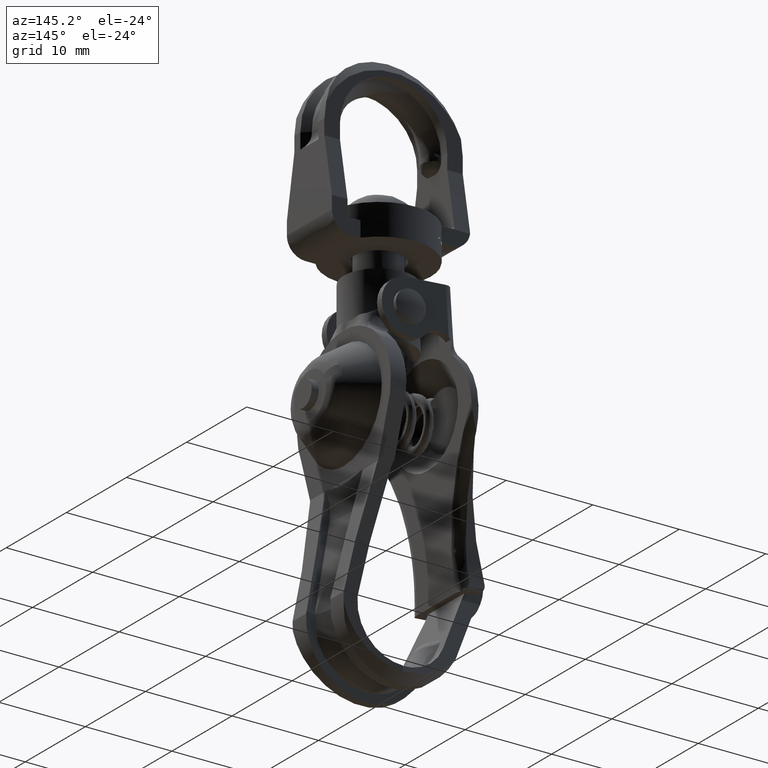
[diagram: clean part render]
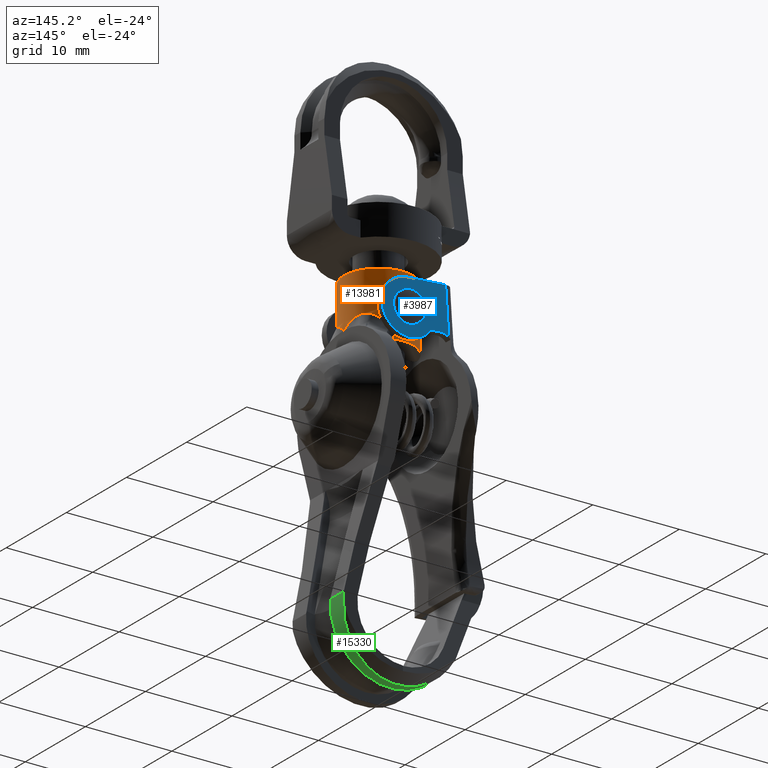
[diagram: same view with three faces highlighted in distinct colors, each labeled with its STEP entity id]
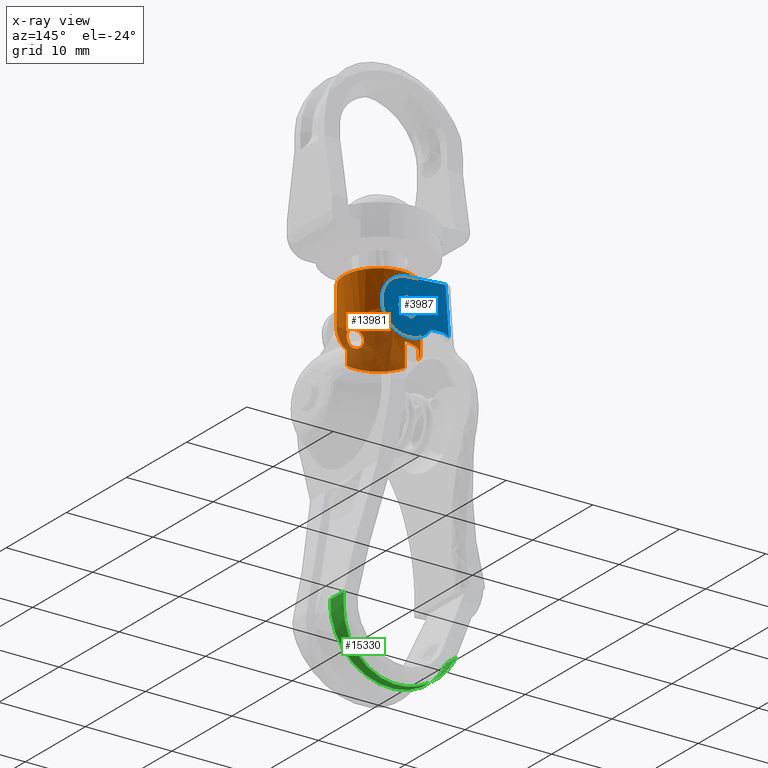
[diagram: x-ray of the same camera — body ghosted, the three highlighted faces saturated]
A machine part, auxiliary view with three faces highlighted in distinct colors.
The next image is the same camera in x-ray (body ghosted, the three faces saturated) — at least one of them is partly hidden behind the body in this view.
Their STEP definitions:

[orange] entity #13981 — the highlighted face is a freeform B-spline surface patch.
#9610=CARTESIAN_POINT('',(-0.999962068885470,3.872993182236981,-0.008726536741870));
#9611=VERTEX_POINT('',#9610);
#9617=CARTESIAN_POINT('',(-0.000423108608414,3.999999977622388,0.999999910489549));
#9618=VERTEX_POINT('',#9617);
#9619=CARTESIAN_POINT('',(-0.999962068885470,3.872993182236981,-0.008726536741870));
#9620=CARTESIAN_POINT('',(-0.999985571059120,3.872987100778583,-0.006028836558230));
#9621=CARTESIAN_POINT('',(-0.999998097247055,3.872983837496015,-0.003330369445373));
#9622=CARTESIAN_POINT('',(-1.000041144697042,3.872972722694584,0.064875800232487));
#9623=CARTESIAN_POINT('',(-0.993485459441529,3.874682101992454,0.131440066759316));
#9624=CARTESIAN_POINT('',(-0.967853765220321,3.881163979886868,0.259901786104458));
#9625=CARTESIAN_POINT('',(-0.948893006351335,3.885906759591078,0.322366082393718));
#9626=CARTESIAN_POINT('',(-0.911136194793428,3.894868181976388,0.413412979576691));
#9627=CARTESIAN_POINT('',(-0.896955468350869,3.898168982262903,0.443328440044986));
#9628=CARTESIAN_POINT('',(-0.866077698382924,3.905145316994600,0.500977682457995));
#9629=CARTESIAN_POINT('',(-0.832554788448978,3.912527710593756,0.556789168972300));
#9630=CARTESIAN_POINT('',(-0.793828377586257,3.920494977101915,0.609015543086898));
#9631=CARTESIAN_POINT('',(-0.752463781605615,3.928643864734286,0.659440431088689));
#9632=CARTESIAN_POINT('',(-0.730334860604453,3.932831615594828,0.683874006429497));
#9633=CARTESIAN_POINT('',(-0.660865323108155,3.945310016419308,0.753357608210982));
#9634=CARTESIAN_POINT('',(-0.610671279674314,3.953486819483885,0.794550944384370));
#9635=CARTESIAN_POINT('',(-0.529618731058294,3.964876840536812,0.848859030388729));
#9636=CARTESIAN_POINT('',(-0.501633937159359,3.968528164172080,0.865705294391371));
#9637=CARTESIAN_POINT('',(-0.443651332049206,3.975427762179558,0.896803077168124));
#9638=CARTESIAN_POINT('',(-0.413857913153447,3.978648081008894,0.910927696711712));
#9639=CARTESIAN_POINT('',(-0.323335930819020,3.987371261247600,0.948538053799800));
#9640=CARTESIAN_POINT('',(-0.260991754024953,3.991996867433378,0.967572031982003));
#9641=CARTESIAN_POINT('',(-0.164411719979087,3.996749642853587,0.986938128516287));
#9642=CARTESIAN_POINT('',(-0.131508906413852,3.997972314730255,0.991863177954335));
#9643=CARTESIAN_POINT('',(-0.065886776857377,3.999591998498235,0.998371718791747));
#9644=CARTESIAN_POINT('',(-0.033128945072798,3.999996518092131,0.999986072367357));
#9645=CARTESIAN_POINT('',(-0.000423108608416,3.999999977622388,0.999999910489549));
#9646=B_SPLINE_CURVE_WITH_KNOTS('',3,(#9619,#9620,#9621,#9622,#9623,#9624,#9625,#9626,#9627,#9628,#9629,#9630,#9631,#9632,#9633,#9634,#9635,#9636,#9637,#9638,#9639,#9640,#9641,#9642,#9643,#9644,#9645),.UNSPECIFIED.,.F.,.U.,(4,2,2,2,2,1,2,2,2,2,2,2,2,4),(0.248712334669810,0.250000000000000,0.281250000000000,0.312500000000000,0.328125000000000,0.343750000000000,0.359375000000000,0.375000000000000,0.406250000000000,0.421875000000000,0.437500000000000,0.468750000000000,0.484375000000000,0.500000000000000),.UNSPECIFIED.);
#9647=EDGE_CURVE('',#9611,#9618,#9646,.T.);
#9649=CARTESIAN_POINT('',(0.992266426163852,3.874971964004921,0.124128028633417));
#9650=VERTEX_POINT('',#9649);
#9651=CARTESIAN_POINT('',(-0.000423108608416,3.999999977622388,0.999999910489549));
#9652=CARTESIAN_POINT('',(0.064988564320348,4.000006896682901,1.000027586733933));
#9653=CARTESIAN_POINT('',(0.130193707947354,3.998410124193091,0.993700522976112));
#9654=CARTESIAN_POINT('',(0.260175884822058,3.992059923372386,0.967832444129219));
#9655=CARTESIAN_POINT('',(0.322736886998014,3.987418109038126,0.948732473390607));
#9656=CARTESIAN_POINT('',(0.413094960063013,3.978726947479450,0.911271449703284));
#9657=CARTESIAN_POINT('',(0.442631686376445,3.975541075493314,0.897304097255540));
#9658=CARTESIAN_POINT('',(0.500522733673286,3.968668119885462,0.866345454084141));
#9659=CARTESIAN_POINT('',(0.528859721942345,3.964979007012015,0.849337167323413));
#9660=CARTESIAN_POINT('',(0.610281894157902,3.953550370972733,0.794871641727056));
#9661=CARTESIAN_POINT('',(0.660460472614129,3.945375675737620,0.753686431681132));
#9662=CARTESIAN_POINT('',(0.729667114071059,3.932955023552921,0.684579229118038));
#9663=CARTESIAN_POINT('',(0.751827928753014,3.928766228772710,0.660172675813406));
#9664=CARTESIAN_POINT('',(0.793423655765769,3.920577536188932,0.609550735226331));
#9665=CARTESIAN_POINT('',(0.812843179784708,3.916583656016640,0.583388140739750));
#9666=CARTESIAN_POINT('',(0.867078510249854,3.905066085876091,0.502392165321158));
#9667=CARTESIAN_POINT('',(0.897912216250072,3.898003385103924,0.445076022799854));
#9668=CARTESIAN_POINT('',(0.935879926462068,3.888997036234221,0.353855220091454));
#9669=CARTESIAN_POINT('',(0.947046038411195,3.886283608887539,0.322761044705540));
#9670=CARTESIAN_POINT('',(0.966121612071139,3.881585438743731,0.260153649866406));
#9671=CARTESIAN_POINT('',(0.980049638675573,3.878091745303511,0.204830987506519));
#9672=CARTESIAN_POINT('',(0.989224709816871,3.875751048526229,0.148449416878946));
#9673=CARTESIAN_POINT('',(0.992266426163852,3.874971964004921,0.124128028633417));
#9674=B_SPLINE_CURVE_WITH_KNOTS('',3,(#9651,#9652,#9653,#9654,#9655,#9656,#9657,#9658,#9659,#9660,#9661,#9662,#9663,#9664,#9665,#9666,#9667,#9668,#9669,#9670,#9671,#9672,#9673),.UNSPECIFIED.,.F.,.U.,(4,2,2,2,2,2,2,2,2,2,1,4),(0.500000000000000,0.531250000000000,0.562500000000000,0.578125000000000,0.593750000000000,0.625000000000000,0.640625000000000,0.656250000000000,0.687500000000000,0.703125000000000,0.718750000000000,0.730435272819264),.UNSPECIFIED.);
#9675=EDGE_CURVE('',#9618,#9650,#9674,.T.);
#9741=CARTESIAN_POINT('',(8.809143E-017,3.999999999999999,-1.0));
#9742=VERTEX_POINT('',#9741);
#9743=CARTESIAN_POINT('',(0.992266426163852,3.874971964004921,0.124128028633417));
#9744=CARTESIAN_POINT('',(0.993292234507383,3.874709293162553,0.115928030145895));
#9745=CARTESIAN_POINT('',(0.994217364917166,3.874471906635534,0.107705574768065));
#9746=CARTESIAN_POINT('',(0.998310056068526,3.873420764659158,0.066760724663216));
#9747=CARTESIAN_POINT('',(0.999982526562811,3.872987857828901,0.033510364476915));
#9748=CARTESIAN_POINT('',(1.000034532562311,3.872974429939548,-0.065444064025209));
#9749=CARTESIAN_POINT('',(0.993604242000163,3.874651425242283,-0.130531992135936));
#9750=CARTESIAN_POINT('',(0.968097296161260,3.881103023886127,-0.258989605692877));
#9751=CARTESIAN_POINT('',(0.948709410054154,3.885950550751801,-0.322822917681880));
#9752=CARTESIAN_POINT('',(0.898670724500772,3.897826593954480,-0.443458126356029));
#9753=CARTESIAN_POINT('',(0.867995005616363,3.904865085775337,-0.500884628601724));
#9754=CARTESIAN_POINT('',(0.813358404048226,3.916477342400271,-0.582686272191362));
#9755=CARTESIAN_POINT('',(0.793701960889775,3.920520600823231,-0.609180299583945));
#9756=CARTESIAN_POINT('',(0.752326589502181,3.928670167744759,-0.659596954851579));
#9757=CARTESIAN_POINT('',(0.708698325006938,3.936924344168036,-0.707742679831820));
#9758=CARTESIAN_POINT('',(0.660611899881191,3.945154288025250,-0.751435501780867));
#9759=CARTESIAN_POINT('',(0.610252225317114,3.953257221593880,-0.792878059411919));
#9760=CARTESIAN_POINT('',(0.583783531848933,3.957265942911589,-0.812571334770505));
#9761=CARTESIAN_POINT('',(0.502047898719905,3.968749894782328,-0.867323153147580));
#9762=CARTESIAN_POINT('',(0.444701378261918,3.975663031505722,-0.898048558898313));
#9763=CARTESIAN_POINT('',(0.354425892015447,3.984381539341634,-0.935652135978443));
#9764=CARTESIAN_POINT('',(0.323619770644311,3.987012786965464,-0.946762091574962));
#9765=CARTESIAN_POINT('',(0.260520357495472,3.991632480916601,-0.966031757928126));
#9766=CARTESIAN_POINT('',(0.228398219241901,3.993604257835043,-0.974122179282395));
#9767=CARTESIAN_POINT('',(0.131734351459295,3.998350774963326,-0.993461185722225));
#9768=CARTESIAN_POINT('',(0.066346928809154,3.999999999999999,-1.0));
#9769=CARTESIAN_POINT('',(-6.776264E-018,3.999999999999999,-1.0));
#9770=B_SPLINE_CURVE_WITH_KNOTS('',3,(#9743,#9744,#9745,#9746,#9747,#9748,#9749,#9750,#9751,#9752,#9753,#9754,#9755,#9756,#9757,#9758,#9759,#9760,#9761,#9762,#9763,#9764,#9765,#9766,#9767,#9768,#9769),.UNSPECIFIED.,.F.,.U.,(4,2,2,2,2,2,2,1,2,2,2,2,2,4),(0.730435272819266,0.734375000000000,0.750000000000000,0.781250000000000,0.812499999999999,0.843749999999999,0.859375000000000,0.875000000000000,0.890625000000000,0.906250000000000,0.937500000000000,0.953125000000000,0.968750000000000,1.0),.UNSPECIFIED.);
#9771=EDGE_CURVE('',#9650,#9742,#9770,.T.);
#9773=CARTESIAN_POINT('',(8.809143E-017,3.999999999999999,-1.0));
#9774=CARTESIAN_POINT('',(-0.066346928809154,3.999999999999999,-1.0));
#9775=CARTESIAN_POINT('',(-0.131533821311696,3.998351561859408,-0.993463012856398));
#9776=CARTESIAN_POINT('',(-0.227656949703119,3.993645127304752,-0.974289376554787));
#9777=CARTESIAN_POINT('',(-0.259419795687325,3.991703598008318,-0.966324974622999));
#9778=CARTESIAN_POINT('',(-0.322379328674554,3.987112716388935,-0.947182218698143));
#9779=CARTESIAN_POINT('',(-0.353600397821250,3.984456053212323,-0.935969876103920));
#9780=CARTESIAN_POINT('',(-0.444336348558749,3.975708532403752,-0.898251975006250));
#9781=CARTESIAN_POINT('',(-0.501673011903517,3.968793947848459,-0.867515938867273));
#9782=CARTESIAN_POINT('',(-0.583050474926007,3.957373175040015,-0.813091060370159));
#9783=CARTESIAN_POINT('',(-0.609531518691156,3.953369323160584,-0.793438895663227));
#9784=CARTESIAN_POINT('',(-0.660171851389680,3.945228865885709,-0.751829156166446));
#9785=CARTESIAN_POINT('',(-0.684290986730028,3.941102616417247,-0.729931658751913));
#9786=CARTESIAN_POINT('',(-0.753159205963201,3.928730986091579,-0.661036106688564));
#9787=CARTESIAN_POINT('',(-0.794454417489000,3.920489560295310,-0.610867934813431));
#9788=CARTESIAN_POINT('',(-0.849280442146252,3.908845326186615,-0.528963225943563));
#9789=CARTESIAN_POINT('',(-0.866206474485763,3.905116572494428,-0.500749619096799));
#9790=CARTESIAN_POINT('',(-0.896996134798888,3.898159442014594,-0.443240083501593));
#9791=CARTESIAN_POINT('',(-0.924868326661940,3.891671681211397,-0.384434856572576));
#9792=CARTESIAN_POINT('',(-0.946953047018655,3.886306336181270,-0.323040279415910));
#9793=CARTESIAN_POINT('',(-0.966080461011423,3.881595748497331,-0.260314498702976));
#9794=CARTESIAN_POINT('',(-0.974196154009130,3.879560039690584,-0.228093661876371));
#9795=CARTESIAN_POINT('',(-0.993011453317222,3.874802054332688,-0.133856132839176));
#9796=CARTESIAN_POINT('',(-0.999418742090547,3.873134690084417,-0.071498619444734));
#9797=CARTESIAN_POINT('',(-0.999962068885470,3.872993182236981,-0.008726536741870));
#9798=B_SPLINE_CURVE_WITH_KNOTS('',3,(#9773,#9774,#9775,#9776,#9777,#9778,#9779,#9780,#9781,#9782,#9783,#9784,#9785,#9786,#9787,#9788,#9789,#9790,#9791,#9792,#9793,#9794,#9795,#9796,#9797),.UNSPECIFIED.,.F.,.U.,(4,2,2,2,2,2,2,2,2,1,2,2,4),(0.0,0.031250000000000,0.046875000000000,0.062500000000000,0.093750000000000,0.109375000000000,0.125000000000000,0.156250000000000,0.171875000000000,0.187500000000000,0.203125000000000,0.218750000000000,0.248712334669810),.UNSPECIFIED.);
#9799=EDGE_CURVE('',#9742,#9611,#9798,.T.);
#9883=CARTESIAN_POINT('',(0.992253240070377,-3.874981253368312,0.124126383093558));
#9884=VERTEX_POINT('',#9883);
#9890=CARTESIAN_POINT('',(0.000423108608414,-3.999999977622388,0.999999910489549));
#9891=VERTEX_POINT('',#9890);
#9892=CARTESIAN_POINT('',(0.992253240070377,-3.874981253368312,0.124126383093558));
#9893=CARTESIAN_POINT('',(0.989251712504059,-3.875749037820708,0.148177842539738));
#9894=CARTESIAN_POINT('',(0.985389082295784,-3.876732746314613,0.172082532191779));
#9895=CARTESIAN_POINT('',(0.967865682241016,-3.881163979885902,0.259903273212603));
#9896=CARTESIAN_POINT('',(0.948904379084131,-3.885906759590156,0.322367501580947));
#9897=CARTESIAN_POINT('',(0.911146698584182,-3.894868181975537,0.413414290329873));
#9898=CARTESIAN_POINT('',(0.896965673375593,-3.898168982262075,0.443329713515577));
#9899=CARTESIAN_POINT('',(0.866087301236167,-3.905145316993822,0.500978880784460));
#9900=CARTESIAN_POINT('',(0.832563781311801,-3.912527710593027,0.556790291178923));
#9901=CARTESIAN_POINT('',(0.793836745080044,-3.920494977101237,0.609016587254605));
#9902=CARTESIAN_POINT('',(0.752471515934849,-3.928643864733659,0.659441396244687));
#9903=CARTESIAN_POINT('',(0.730342272720040,-3.932831615594227,0.683874931376911));
#9904=CARTESIAN_POINT('',(0.660871770759556,-3.945310016418786,0.753358412804274));
#9905=CARTESIAN_POINT('',(0.610677089203703,-3.953486819483414,0.794551669347320));
#9906=CARTESIAN_POINT('',(0.529623590369355,-3.964876840536418,0.848859636775278));
#9907=CARTESIAN_POINT('',(0.501638480900833,-3.968528164171711,0.865705861398439));
#9908=CARTESIAN_POINT('',(0.443655247049566,-3.975427762179241,0.896803565715477));
#9909=CARTESIAN_POINT('',(0.413861517313111,-3.978648081008601,0.910928146469695));
#9910=CARTESIAN_POINT('',(0.323338625643450,-3.987371261247382,0.948538390083126));
#9911=CARTESIAN_POINT('',(0.260993868028838,-3.991996867433207,0.967572295785556));
#9912=CARTESIAN_POINT('',(0.164413001525668,-3.996749642853483,0.986938288438671));
#9913=CARTESIAN_POINT('',(0.131509915482851,-3.997972314730173,0.991863303874628));
#9914=CARTESIAN_POINT('',(0.065887264561401,-3.999591998498195,0.998371779651642));
#9915=CARTESIAN_POINT('',(0.033129183403447,-3.999996518092112,0.999986102108301));
#9916=CARTESIAN_POINT('',(0.000423108608414,-3.999999977622388,0.999999910489549));
#9917=B_SPLINE_CURVE_WITH_KNOTS('',3,(#9892,#9893,#9894,#9895,#9896,#9897,#9898,#9899,#9900,#9901,#9902,#9903,#9904,#9905,#9906,#9907,#9908,#9909,#9910,#9911,#9912,#9913,#9914,#9915,#9916),.UNSPECIFIED.,.F.,.U.,(4,2,2,2,1,2,2,2,2,2,2,2,4),(0.269772860934219,0.281250000000000,0.312500000000000,0.328125000000000,0.343750000000000,0.359375000000000,0.375000000000000,0.406250000000000,0.421875000000000,0.437500000000000,0.468750000000000,0.484375000000000,0.500000000000000),.UNSPECIFIED.);
#9918=EDGE_CURVE('',#9884,#9891,#9917,.T.);
#9920=CARTESIAN_POINT('',(-0.999962112285322,-3.872993179254222,-0.008726537070965));
#9921=VERTEX_POINT('',#9920);
#9922=CARTESIAN_POINT('',(0.000423108608416,-3.999999977622388,0.999999910489549));
#9923=CARTESIAN_POINT('',(-0.064988564320348,-4.000006896682901,1.000027586733933));
#9924=CARTESIAN_POINT('',(-0.130193707947354,-3.998410124193091,0.993700522976112));
#9925=CARTESIAN_POINT('',(-0.260175884822058,-3.992059923372386,0.967832444129219));
#9926=CARTESIAN_POINT('',(-0.322736886998014,-3.987418109038126,0.948732473390607));
#9927=CARTESIAN_POINT('',(-0.413094960063013,-3.978726947479450,0.911271449703284));
#9928=CARTESIAN_POINT('',(-0.442631686376445,-3.975541075493314,0.897304097255540));
#9929=CARTESIAN_POINT('',(-0.500522733673286,-3.968668119885462,0.866345454084141));
#9930=CARTESIAN_POINT('',(-0.528859721942345,-3.964979007012015,0.849337167323413));
#9931=CARTESIAN_POINT('',(-0.610281894157902,-3.953550370972733,0.794871641727056));
#9932=CARTESIAN_POINT('',(-0.660460472614129,-3.945375675737620,0.753686431681132));
#9933=CARTESIAN_POINT('',(-0.729667114071059,-3.932955023552921,0.684579229118038));
#9934=CARTESIAN_POINT('',(-0.751827928753014,-3.928766228772710,0.660172675813406));
#9935=CARTESIAN_POINT('',(-0.793423655765769,-3.920577536188932,0.609550735226331));
#9936=CARTESIAN_POINT('',(-0.812843179784708,-3.916583656016640,0.583388140739750));
#9937=CARTESIAN_POINT('',(-0.867078510249854,-3.905066085876091,0.502392165321158));
#9938=CARTESIAN_POINT('',(-0.897912216250072,-3.898003385103924,0.445076022799854));
#9939=CARTESIAN_POINT('',(-0.935879926462068,-3.888997036234221,0.353855220091454));
#9940=CARTESIAN_POINT('',(-0.947046038411195,-3.886283608887539,0.322761044705540));
#9941=CARTESIAN_POINT('',(-0.966121612071139,-3.881585438743731,0.260153649866406));
#9942=CARTESIAN_POINT('',(-0.982058868878091,-3.877587751839269,0.196850247143641));
#9943=CARTESIAN_POINT('',(-0.991772955024462,-3.875099714048961,0.132160387738331));
#9944=CARTESIAN_POINT('',(-0.998310056068526,-3.873420764659158,0.066760724663216));
#9945=CARTESIAN_POINT('',(-0.999982526562811,-3.872987857828901,0.033510364476915));
#9946=CARTESIAN_POINT('',(-1.000001483737719,-3.872982963108107,-0.002560404800990));
#9947=CARTESIAN_POINT('',(-0.999988958770294,-3.872986233587362,-0.005644435237494));
#9948=CARTESIAN_POINT('',(-0.999962112285322,-3.872993179254222,-0.008726537070965));
#9949=B_SPLINE_CURVE_WITH_KNOTS('',3,(#9922,#9923,#9924,#9925,#9926,#9927,#9928,#9929,#9930,#9931,#9932,#9933,#9934,#9935,#9936,#9937,#9938,#9939,#9940,#9941,#9942,#9943,#9944,#9945,#9946,#9947,#9948),.UNSPECIFIED.,.F.,.U.,(4,2,2,2,2,2,2,2,2,2,1,2,2,4),(0.500000000000000,0.531250000000000,0.562500000000000,0.578125000000000,0.593750000000000,0.625000000000000,0.640625000000000,0.656250000000000,0.687500000000000,0.703125000000000,0.718750000000000,0.734375000000000,0.750000000000000,0.751461828103559),.UNSPECIFIED.);
#9950=EDGE_CURVE('',#9891,#9921,#9949,.T.);
#10078=CARTESIAN_POINT('',(-8.809143E-017,-3.999999999999999,-1.0));
#10079=VERTEX_POINT('',#10078);
#10080=CARTESIAN_POINT('',(-0.999962112285322,-3.872993179254222,-0.008726537070965));
#10081=CARTESIAN_POINT('',(-0.999419097312341,-3.873134713723103,-0.071531615272790));
#10082=CARTESIAN_POINT('',(-0.993007653675951,-3.874802323293650,-0.133536519329752));
#10083=CARTESIAN_POINT('',(-0.968097296161260,-3.881103023886127,-0.258989605692877));
#10084=CARTESIAN_POINT('',(-0.948709410054154,-3.885950550751801,-0.322822917681880));
#10085=CARTESIAN_POINT('',(-0.898670724500772,-3.897826593954480,-0.443458126356029));
#10086=CARTESIAN_POINT('',(-0.867995005616363,-3.904865085775337,-0.500884628601724));
#10087=CARTESIAN_POINT('',(-0.813358404048226,-3.916477342400271,-0.582686272191362));
#10088=CARTESIAN_POINT('',(-0.793701960889775,-3.920520600823231,-0.609180299583945));
#10089=CARTESIAN_POINT('',(-0.752326589502181,-3.928670167744759,-0.659596954851579));
#10090=CARTESIAN_POINT('',(-0.708698325006938,-3.936924344168036,-0.707742679831820));
#10091=CARTESIAN_POINT('',(-0.660611899881191,-3.945154288025250,-0.751435501780867));
#10092=CARTESIAN_POINT('',(-0.610252225317114,-3.953257221593880,-0.792878059411919));
#10093=CARTESIAN_POINT('',(-0.583783531848933,-3.957265942911589,-0.812571334770505));
#10094=CARTESIAN_POINT('',(-0.502047898719905,-3.968749894782328,-0.867323153147580));
#10095=CARTESIAN_POINT('',(-0.444701378261918,-3.975663031505722,-0.898048558898313));
#10096=CARTESIAN_POINT('',(-0.354425892015447,-3.984381539341634,-0.935652135978443));
#10097=CARTESIAN_POINT('',(-0.323619770644311,-3.987012786965464,-0.946762091574962));
#10098=CARTESIAN_POINT('',(-0.260520357495472,-3.991632480916601,-0.966031757928126));
#10099=CARTESIAN_POINT('',(-0.228398219241901,-3.993604257835043,-0.974122179282395));
#10100=CARTESIAN_POINT('',(-0.131734351459295,-3.998350774963326,-0.993461185722225));
#10101=CARTESIAN_POINT('',(-0.066346928809154,-3.999999999999999,-1.0));
#10102=CARTESIAN_POINT('',(6.776264E-018,-3.999999999999999,-1.0));
#10103=B_SPLINE_CURVE_WITH_KNOTS('',3,(#10080,#10081,#10082,#10083,#10084,#10085,#10086,#10087,#10088,#10089,#10090,#10091,#10092,#10093,#10094,#10095,#10096,#10097,#10098,#10099,#10100,#10101,#10102),.UNSPECIFIED.,.F.,.U.,(4,2,2,2,2,1,2,2,2,2,2,4),(0.751461828103557,0.781250000000000,0.812499999999999,0.843749999999999,0.859375000000000,0.875000000000000,0.890625000000000,0.906250000000000,0.937500000000000,0.953125000000000,0.968750000000000,1.0),.UNSPECIFIED.);
#10104=EDGE_CURVE('',#9921,#10079,#10103,.T.);
#10106=CARTESIAN_POINT('',(-8.809143E-017,-3.999999999999999,-1.0));
#10107=CARTESIAN_POINT('',(0.066347306086031,-3.999999999999969,-0.999999952920152));
#10108=CARTESIAN_POINT('',(0.131534612562901,-3.998351561859344,-0.993462914117280));
#10109=CARTESIAN_POINT('',(0.227658414444567,-3.993645127304633,-0.974289193771774));
#10110=CARTESIAN_POINT('',(0.259421493745486,-3.991703598008181,-0.966324762724724));
#10111=CARTESIAN_POINT('',(0.322381511358911,-3.987112716388758,-0.947181946324051));
#10112=CARTESIAN_POINT('',(0.353602832177937,-3.984456053212126,-0.935969572323995));
#10113=CARTESIAN_POINT('',(0.444339548133852,-3.975708532403492,-0.898251575735802));
#10114=CARTESIAN_POINT('',(0.501676740482363,-3.968793947848156,-0.867515473583196));
#10115=CARTESIAN_POINT('',(0.583055025052618,-3.957373175039646,-0.813090492566299));
#10116=CARTESIAN_POINT('',(0.609536348872891,-3.953369323160192,-0.793438292911685));
#10117=CARTESIAN_POINT('',(0.660177243426301,-3.945228865885272,-0.751828483301828));
#10118=CARTESIAN_POINT('',(0.684296659943628,-3.941102616416787,-0.729930950799617));
#10119=CARTESIAN_POINT('',(0.753165723496522,-3.928730986091051,-0.661035293374806));
#10120=CARTESIAN_POINT('',(0.794461498944703,-3.920489560294736,-0.610867051128597));
#10121=CARTESIAN_POINT('',(0.849288371358760,-3.908845326185973,-0.528962236468357));
#10122=CARTESIAN_POINT('',(0.866214684377315,-3.905116572493763,-0.500748594596052));
#10123=CARTESIAN_POINT('',(0.897004895248470,-3.898159442013884,-0.443238990297489));
#10124=CARTESIAN_POINT('',(0.924877629090453,-3.891671681210643,-0.384433695735688));
#10125=CARTESIAN_POINT('',(0.946962874393116,-3.886306336180474,-0.323039053071761));
#10126=CARTESIAN_POINT('',(0.966090804622151,-3.881595748496493,-0.260313207938433));
#10127=CARTESIAN_POINT('',(0.974206752802093,-3.879560039689725,-0.228092339267998));
#10128=CARTESIAN_POINT('',(0.993554249082543,-3.874667659705909,-0.131192873602483));
#10129=CARTESIAN_POINT('',(0.999970250318713,-3.872994072568686,-0.066136602677333));
#10130=CARTESIAN_POINT('',(1.000038443177850,-3.872976643261334,0.040818726610059));
#10131=CARTESIAN_POINT('',(0.997423741709479,-3.873658511253124,0.082690365245004));
#10132=CARTESIAN_POINT('',(0.992253240070377,-3.874981253368312,0.124126383093558));
#10133=B_SPLINE_CURVE_WITH_KNOTS('',3,(#10106,#10107,#10108,#10109,#10110,#10111,#10112,#10113,#10114,#10115,#10116,#10117,#10118,#10119,#10120,#10121,#10122,#10123,#10124,#10125,#10126,#10127,#10128,#10129,#10130,#10131,#10132),.UNSPECIFIED.,.F.,.U.,(4,2,2,2,2,2,2,2,2,1,2,2,2,4),(0.0,0.031250000000000,0.046875000000000,0.062500000000000,0.093750000000000,0.109375000000000,0.125000000000000,0.156250000000000,0.171875000000000,0.187500000000000,0.203125000000000,0.218750000000000,0.250000000000000,0.269772860934219),.UNSPECIFIED.);
#10134=EDGE_CURVE('',#10079,#9884,#10133,.T.);
#12988=CARTESIAN_POINT('',(-3.833259025103050,-1.142858366756802,-3.117698242291685));
#12989=VERTEX_POINT('',#12988);
#13003=CARTESIAN_POINT('',(-3.833259025103050,-1.142858366756802,4.099990999999790));
#13004=VERTEX_POINT('',#13003);
#13005=CARTESIAN_POINT('',(-3.833259025103050,-1.142858366756802,4.099990999999790));
#13006=CARTESIAN_POINT('',(-3.833259025103050,-1.142858366756802,-3.117698242291685));
#13007=QUASI_UNIFORM_CURVE('',1,(#13005,#13006),.UNSPECIFIED.,.F.,.U.);
#13008=EDGE_CURVE('',#13004,#12989,#13007,.T.);
#13045=CARTESIAN_POINT('',(-3.833259754895805,1.142855918957482,4.099990999999790));
#13046=VERTEX_POINT('',#13045);
#13060=CARTESIAN_POINT('',(-3.833259754895805,1.142855918957482,-3.117698242291685));
#13061=VERTEX_POINT('',#13060);
#13062=CARTESIAN_POINT('',(-3.833259754895805,1.142855918957482,-3.117698242291685));
#13063=CARTESIAN_POINT('',(-3.833259754895805,1.142855918957482,4.099990999999790));
#13064=QUASI_UNIFORM_CURVE('',1,(#13062,#13063),.UNSPECIFIED.,.F.,.U.);
#13065=EDGE_CURVE('',#13061,#13046,#13064,.T.);
#13175=CARTESIAN_POINT('',(0.960000000000000,3.883091551843710,-3.117698242291685));
#13176=VERTEX_POINT('',#13175);
#13184=CARTESIAN_POINT('',(0.960000000000000,3.883091551843710,-1.518790820048575));
#13185=VERTEX_POINT('',#13184);
#13186=CARTESIAN_POINT('',(0.960000000000000,3.883091551843710,-1.518790820048575));
#13187=CARTESIAN_POINT('',(0.960000000000000,3.883091551843710,-3.117698242291685));
#13188=QUASI_UNIFORM_CURVE('',1,(#13186,#13187),.UNSPECIFIED.,.F.,.U.);
#13189=EDGE_CURVE('',#13185,#13176,#13188,.T.);
#13333=CARTESIAN_POINT('',(0.960000000000000,-3.883091551843710,-1.518790820048535));
#13334=VERTEX_POINT('',#13333);
#13362=CARTESIAN_POINT('',(0.960000000000000,-3.883091551843710,-3.117698242291685));
#13363=VERTEX_POINT('',#13362);
#13364=CARTESIAN_POINT('',(0.960000000000000,-3.883091551843710,-3.117698242291685));
#13365=CARTESIAN_POINT('',(0.960000000000000,-3.883091551843710,-1.518790820048535));
#13366=QUASI_UNIFORM_CURVE('',1,(#13364,#13365),.UNSPECIFIED.,.F.,.U.);
#13367=EDGE_CURVE('',#13363,#13334,#13366,.T.);
#13492=CARTESIAN_POINT('',(2.666666666666665,-2.981423969999720,-0.679917257363541));
#13493=VERTEX_POINT('',#13492);
#13494=CARTESIAN_POINT('',(0.960000000000000,-3.883091551843710,-1.518790820048535));
#13495=CARTESIAN_POINT('',(1.126807687189695,-3.841852405775653,-1.473073952921820));
#13496=CARTESIAN_POINT('',(1.286960625791824,-3.790940975277386,-1.417737846129475));
#13497=CARTESIAN_POINT('',(1.518994729435123,-3.701287653579793,-1.324178463011754));
#13498=CARTESIAN_POINT('',(1.595094218637700,-3.669108286656415,-1.291156301608164));
#13499=CARTESIAN_POINT('',(1.743653783263214,-3.600882207133979,-1.222631748049402));
#13500=CARTESIAN_POINT('',(1.888793843418280,-3.528723914472411,-1.151554717650398));
#13501=CARTESIAN_POINT('',(2.027720443327685,-3.448873524631700,-1.076411692460781));
#13502=CARTESIAN_POINT('',(2.163775506307660,-3.365182661238100,-0.999688220991499));
#13503=CARTESIAN_POINT('',(2.230436813778522,-3.321362130299989,-0.960490291875229));
#13504=CARTESIAN_POINT('',(2.425364397890060,-3.184774193070030,-0.841758494342950));
#13505=CARTESIAN_POINT('',(2.548901199423855,-3.086756606062500,-0.760947689646955));
#13506=CARTESIAN_POINT('',(2.666666666666665,-2.981423969999720,-0.679917257363542));
#13507=B_SPLINE_CURVE_WITH_KNOTS('',3,(#13494,#13495,#13496,#13497,#13498,#13499,#13500,#13501,#13502,#13503,#13504,#13505,#13506),.UNSPECIFIED.,.F.,.U.,(4,2,2,1,2,2,4),(0.0,0.250000000000000,0.375000000000001,0.500000000000001,0.625000000000001,0.750000000000001,1.0),.UNSPECIFIED.);
#13508=EDGE_CURVE('',#13334,#13493,#13507,.T.);
#13590=CARTESIAN_POINT('',(4.0,0.0,-1.600009000000195));
#13591=VERTEX_POINT('',#13590);
#13600=CARTESIAN_POINT('',(2.666666666666665,-2.981423969999720,-0.679917257363540));
#13601=CARTESIAN_POINT('',(2.718700303742093,-2.934883670152837,-0.644114672750116));
#13602=CARTESIAN_POINT('',(2.770862873875883,-2.885780437509179,-0.612523072129298));
#13603=CARTESIAN_POINT('',(2.875080416412096,-2.781963766568150,-0.557913661964184));
#13604=CARTESIAN_POINT('',(2.926272850936455,-2.728104606476146,-0.535346814891717));
#13605=CARTESIAN_POINT('',(3.076622825965504,-2.560644870880093,-0.481086116076712));
#13606=CARTESIAN_POINT('',(3.172657157424306,-2.441071002101538,-0.462711545161039));
#13607=CARTESIAN_POINT('',(3.308656806926174,-2.249207727833352,-0.460498807861625));
#13608=CARTESIAN_POINT('',(3.351936686207405,-2.184169190961679,-0.464014025892197));
#13609=CARTESIAN_POINT('',(3.413841867322584,-2.084994569702228,-0.475130629863381));
#13610=CARTESIAN_POINT('',(3.433986623016770,-2.051638597699533,-0.479822349681879));
#13611=CARTESIAN_POINT('',(3.472877048700835,-1.985096991896264,-0.490952391975471));
#13612=CARTESIAN_POINT('',(3.491679389987313,-1.951823182015019,-0.497398406064062));
#13613=CARTESIAN_POINT('',(3.582642561195272,-1.785410714577067,-0.533717968869715));
#13614=CARTESIAN_POINT('',(3.645730112965078,-1.652126222333666,-0.575712709384340));
#13615=CARTESIAN_POINT('',(3.727990731169111,-1.451655050655257,-0.654185408094050));
#13616=CARTESIAN_POINT('',(3.753334818651909,-1.384743657987581,-0.682952207645744));
#13617=CARTESIAN_POINT('',(3.800096938598486,-1.250719999238831,-0.745313845087777));
#13618=CARTESIAN_POINT('',(3.821550216916918,-1.183427159005356,-0.779025689585123));
#13619=CARTESIAN_POINT('',(3.879277629914982,-0.984981560435599,-0.884870565392081));
#13620=CARTESIAN_POINT('',(3.909449167686292,-0.855994346667341,-0.962187333726049));
#13621=CARTESIAN_POINT('',(3.956337248026988,-0.603253426118502,-1.127571115883968));
#13622=CARTESIAN_POINT('',(3.973027200463970,-0.479514313779601,-1.215665581374486));
#13623=CARTESIAN_POINT('',(3.989404106238248,-0.297278750192351,-1.354732800804602));
#13624=CARTESIAN_POINT('',(3.993413143764945,-0.237099224254445,-1.402249472341036));
#13625=CARTESIAN_POINT('',(3.997386165681437,-0.147631253983791,-1.475165951818973));
#13626=CARTESIAN_POINT('',(3.998370136430468,-0.117942286249063,-1.499745287002050));
#13627=CARTESIAN_POINT('',(3.999676701039591,-0.058825317217152,-1.549437805633501));
#13628=CARTESIAN_POINT('',(3.999999999999999,-0.029612970334348,-1.574404471092672));
#13629=CARTESIAN_POINT('',(4.0,0.0,-1.600009000000195));
#13630=B_SPLINE_CURVE_WITH_KNOTS('',3,(#13600,#13601,#13602,#13603,#13604,#13605,#13606,#13607,#13608,#13609,#13610,#13611,#13612,#13613,#13614,#13615,#13616,#13617,#13618,#13619,#13620,#13621,#13622,#13623,#13624,#13625,#13626,#13627,#13628,#13629),.UNSPECIFIED.,.F.,.U.,(4,2,2,2,2,2,2,2,2,2,2,2,2,2,4),(0.0,0.062500000000000,0.125000000000000,0.250000000000000,0.312500000000000,0.343750000000000,0.375000000000000,0.500000000000000,0.562500000000000,0.624999999999999,0.750000000000000,0.875000000000000,0.937500000000000,0.968750000000000,1.0),.UNSPECIFIED.);
#13631=EDGE_CURVE('',#13493,#13591,#13630,.T.);
#13687=CARTESIAN_POINT('',(2.666666666666720,2.981423969999675,-0.679917257363505));
#13688=VERTEX_POINT('',#13687);
#13689=CARTESIAN_POINT('',(4.0,-3.156192E-016,-1.600009000000195));
#13690=CARTESIAN_POINT('',(4.0,0.029612970334305,-1.574404471092621));
#13691=CARTESIAN_POINT('',(3.999676701039591,0.058825317217172,-1.549437805633534));
#13692=CARTESIAN_POINT('',(3.998370136430467,0.117942286249072,-1.499745287002068));
#13693=CARTESIAN_POINT('',(3.997386165681439,0.147631253983786,-1.475165951818972));
#13694=CARTESIAN_POINT('',(3.993413143764943,0.237099224254440,-1.402249472341038));
#13695=CARTESIAN_POINT('',(3.989404106238249,0.297278750192341,-1.354732800804599));
#13696=CARTESIAN_POINT('',(3.973027200463971,0.479514313779591,-1.215665581374487));
#13697=CARTESIAN_POINT('',(3.956337248026991,0.603253426118493,-1.127571115883974));
#13698=CARTESIAN_POINT('',(3.909449167686292,0.855994346667327,-0.962187333726057));
#13699=CARTESIAN_POINT('',(3.879277629914987,0.984981560435584,-0.884870565392091));
#13700=CARTESIAN_POINT('',(3.821550216916926,1.183427159005335,-0.779025689585134));
#13701=CARTESIAN_POINT('',(3.800096938598494,1.250719999238809,-0.745313845087788));
#13702=CARTESIAN_POINT('',(3.753334818651917,1.384743657987559,-0.682952207645754));
#13703=CARTESIAN_POINT('',(3.727990731169120,1.451655050655234,-0.654185408094060));
#13704=CARTESIAN_POINT('',(3.645730112965087,1.652126222333640,-0.575712709384350));
#13705=CARTESIAN_POINT('',(3.582642561195285,1.785410714577037,-0.533717968869724));
#13706=CARTESIAN_POINT('',(3.491679389987334,1.951823182014983,-0.497398406064070));
#13707=CARTESIAN_POINT('',(3.472877048700858,1.985096991896225,-0.490952391975478));
#13708=CARTESIAN_POINT('',(3.433986623016795,2.051638597699492,-0.479822349681885));
#13709=CARTESIAN_POINT('',(3.413841867322611,2.084994569702184,-0.475130629863387));
#13710=CARTESIAN_POINT('',(3.351936686207432,2.184169190961637,-0.464014025892200));
#13711=CARTESIAN_POINT('',(3.308656806926202,2.249207727833309,-0.460498807861625));
#13712=CARTESIAN_POINT('',(3.172657157424337,2.441071002101495,-0.462711545161033));
#13713=CARTESIAN_POINT('',(3.076622825965540,2.560644870880055,-0.481086116076705));
#13714=CARTESIAN_POINT('',(2.926272850936498,2.728104606476097,-0.535346814891698));
#13715=CARTESIAN_POINT('',(2.875080416412151,2.781963766568094,-0.557913661964158));
#13716=CARTESIAN_POINT('',(2.770862873875937,2.885780437509129,-0.612523072129268));
#13717=CARTESIAN_POINT('',(2.718700303742148,2.934883670152791,-0.644114672750084));
#13718=CARTESIAN_POINT('',(2.666666666666720,2.981423969999675,-0.679917257363505));
#13719=B_SPLINE_CURVE_WITH_KNOTS('',3,(#13689,#13690,#13691,#13692,#13693,#13694,#13695,#13696,#13697,#13698,#13699,#13700,#13701,#13702,#13703,#13704,#13705,#13706,#13707,#13708,#13709,#13710,#13711,#13712,#13713,#13714,#13715,#13716,#13717,#13718),.UNSPECIFIED.,.F.,.U.,(4,2,2,2,2,2,2,2,2,2,2,2,2,2,4),(0.0,0.031250000000000,0.062500000000000,0.125000000000000,0.250000000000000,0.375000000000000,0.437500000000000,0.500000000000000,0.625000000000000,0.656250000000000,0.687500000000000,0.750000000000000,0.875000000000000,0.937500000000000,1.0),.UNSPECIFIED.);
#13720=EDGE_CURVE('',#13591,#13688,#13719,.T.);
#13810=CARTESIAN_POINT('',(2.666666666666720,2.981423969999675,-0.679917257363506));
#13811=CARTESIAN_POINT('',(2.548862419794163,3.086791291617762,-0.760974372597667));
#13812=CARTESIAN_POINT('',(2.425155044832024,3.184946779626546,-0.841898620684294));
#13813=CARTESIAN_POINT('',(2.229884854548063,3.321735883629084,-0.960820158431610));
#13814=CARTESIAN_POINT('',(2.163205394766875,3.365547968367000,-1.000018064843958));
#13815=CARTESIAN_POINT('',(2.027223410560120,3.449164529419371,-1.076683561357924));
#13816=CARTESIAN_POINT('',(1.957859397829994,3.489017312824010,-1.114191734999330));
#13817=CARTESIAN_POINT('',(1.745333049328125,3.602725838910122,-1.223575060297131));
#13818=CARTESIAN_POINT('',(1.597781042713584,3.670778179673603,-1.292353439735611));
#13819=CARTESIAN_POINT('',(1.365715408819931,3.760545252794799,-1.386011069833580));
#13820=CARTESIAN_POINT('',(1.286437310818748,3.788431253665749,-1.415665759985398));
#13821=CARTESIAN_POINT('',(1.125389895235215,3.839352797298067,-1.470583089945947));
#13822=CARTESIAN_POINT('',(1.043465793816347,3.862456663123240,-1.495915407830966));
#13823=CARTESIAN_POINT('',(0.960000000000000,3.883091551843710,-1.518790820048575));
#13824=B_SPLINE_CURVE_WITH_KNOTS('',3,(#13810,#13811,#13812,#13813,#13814,#13815,#13816,#13817,#13818,#13819,#13820,#13821,#13822,#13823),.UNSPECIFIED.,.F.,.U.,(4,2,2,2,2,2,4),(0.0,0.250000000000000,0.375000000000000,0.500000000000000,0.750000000000000,0.875000000000000,1.0),.UNSPECIFIED.);
#13825=EDGE_CURVE('',#13688,#13185,#13824,.T.);
#13840=CARTESIAN_POINT('',(3.999999999999349,0.000002281791710,4.099990999999791));
#13841=VERTEX_POINT('',#13840);
#13842=CARTESIAN_POINT('',(-3.833259025103050,-1.142858366756802,4.099990999999790));
#13843=CARTESIAN_POINT('',(-3.735755101416099,-1.470274140116107,4.099990999999792));
#13844=CARTESIAN_POINT('',(-3.504652743635304,-1.990284519139573,4.099990999999786));
#13845=CARTESIAN_POINT('',(-2.951848300857292,-2.749385420917172,4.099990999999791));
#13846=CARTESIAN_POINT('',(-2.308337031553350,-3.312132835502967,4.099990999999794));
#13847=CARTESIAN_POINT('',(-1.595281728411920,-3.687280227670267,4.099990999999778));
#13848=CARTESIAN_POINT('',(-0.931793480536601,-3.909389942430022,4.099990999999798));
#13849=CARTESIAN_POINT('',(-0.209218501387053,-4.022999960511369,4.099990999999768));
#13850=CARTESIAN_POINT('',(0.626182980085576,-3.981040203950753,4.099990999999855));
#13851=CARTESIAN_POINT('',(1.491830256654424,-3.749075669733474,4.099990999999727));
#13852=CARTESIAN_POINT('',(2.350072729549269,-3.291147638801921,4.099990999999844));
#13853=CARTESIAN_POINT('',(3.010176788056042,-2.680551637181156,4.099990999999910));
#13854=CARTESIAN_POINT('',(3.438479725416388,-2.071036877143677,4.099990999999737));
#13855=CARTESIAN_POINT('',(3.713758624237585,-1.526287667390519,4.099990999999794));
#13856=CARTESIAN_POINT('',(3.937134023869508,-0.846601167330479,4.099990999999861));
#13857=CARTESIAN_POINT('',(4.000062851560711,-0.311914189779990,4.099990999999723));
#13858=CARTESIAN_POINT('',(3.999999999999349,0.000002281791710,4.099990999999791));
#13859=B_SPLINE_CURVE_WITH_KNOTS('',3,(#13842,#13843,#13844,#13845,#13846,#13847,#13848,#13849,#13850,#13851,#13852,#13853,#13854,#13855,#13856,#13857,#13858),.UNSPECIFIED.,.F.,.U.,(4,1,1,1,1,1,1,1,1,1,1,1,1,1,4),(0.000000264135721,1.024845539601637,1.693289472939451,2.807296961000015,3.564825132223666,4.099547665610033,4.901666584220239,5.748221252883669,6.594879495740068,7.575234660532965,8.644690407233355,9.268539155448650,9.803268320975768,10.471684132417201,11.407423796064940),.UNSPECIFIED.);
#13860=EDGE_CURVE('',#13004,#13841,#13859,.T.);
#13862=CARTESIAN_POINT('',(3.999999999999349,0.000002281791710,4.099990999999791));
#13863=CARTESIAN_POINT('',(4.000045056948838,0.282215079637716,4.099990999999793));
#13864=CARTESIAN_POINT('',(3.947902547334167,0.772349481286070,4.099990999999774));
#13865=CARTESIAN_POINT('',(3.747909737013631,1.443413537352274,4.099990999999815));
#13866=CARTESIAN_POINT('',(3.478217342980713,2.008055640902727,4.099990999999783));
#13867=CARTESIAN_POINT('',(3.098799043231127,2.560812509522034,4.099990999999791));
#13868=CARTESIAN_POINT('',(2.618946612936244,3.051522554835352,4.099990999999827));
#13869=CARTESIAN_POINT('',(2.084511772585263,3.431671636971607,4.099990999999723));
#13870=CARTESIAN_POINT('',(1.486624174614097,3.733838381194305,4.099990999999781));
#13871=CARTESIAN_POINT('',(0.802275402374734,3.946186234221840,4.099990999999958));
#13872=CARTESIAN_POINT('',(0.044779041839704,4.022398857419565,4.099990999999750));
#13873=CARTESIAN_POINT('',(-0.712732212540547,3.959013756021906,4.099990999999728));
#13874=CARTESIAN_POINT('',(-1.389434485330807,3.773686704139184,4.099990999999966));
#13875=CARTESIAN_POINT('',(-2.034759016379331,3.465490102596998,4.099990999999576));
#13876=CARTESIAN_POINT('',(-2.547180667716454,3.105326102676148,4.099990999999903));
#13877=CARTESIAN_POINT('',(-3.018046523217096,2.649993815481474,4.099990999999772));
#13878=CARTESIAN_POINT('',(-3.485045626431222,2.030941614619887,4.099990999999680));
#13879=CARTESIAN_POINT('',(-3.731510070418494,1.484516597067465,4.099991000000035));
#13880=CARTESIAN_POINT('',(-3.833259754895805,1.142855918957482,4.099990999999790));
#13881=B_SPLINE_CURVE_WITH_KNOTS('',3,(#13862,#13863,#13864,#13865,#13866,#13867,#13868,#13869,#13870,#13871,#13872,#13873,#13874,#13875,#13876,#13877,#13878,#13879,#13880),.UNSPECIFIED.,.F.,.U.,(4,1,1,1,1,1,1,1,1,1,1,1,1,1,1,1,4),(0.000000264135187,0.846631669433890,1.470472963701038,2.094322645527457,2.718174958751124,3.475707040251971,4.144134303726802,4.678862936578071,5.480946262056292,6.282977063900709,6.951393136424041,7.753465219704438,8.377322395068786,9.090302798603712,9.625038348839809,10.337979184131990,11.407421786725060),.UNSPECIFIED.);
#13882=EDGE_CURVE('',#13841,#13046,#13881,.T.);
#13897=CARTESIAN_POINT('',(-3.833259025103050,-1.142858366756802,-3.117698242291685));
#13898=CARTESIAN_POINT('',(-3.751695450936734,-1.416607331619195,-3.117698242291701));
#13899=CARTESIAN_POINT('',(-3.554208076804491,-1.887600305372937,-3.117698242291667));
#13900=CARTESIAN_POINT('',(-3.183611434028384,-2.444340307756793,-3.117698242291695));
#13901=CARTESIAN_POINT('',(-2.770094238161566,-2.906281222342513,-3.117698242291685));
#13902=CARTESIAN_POINT('',(-2.181294639873641,-3.394329714225349,-3.117698242291690));
#13903=CARTESIAN_POINT('',(-1.422787416977197,-3.775558819638854,-3.117698242291685));
#13904=CARTESIAN_POINT('',(-0.556041138630583,-3.987278978531719,-3.117698242291689));
#13905=CARTESIAN_POINT('',(0.209316768735765,-4.020420530470965,-3.117698242291743));
#13906=CARTESIAN_POINT('',(0.728934289010280,-3.940232352223648,-3.117698242291600));
#13907=CARTESIAN_POINT('',(0.960000000000000,-3.883091551843710,-3.117698242291685));
#13908=B_SPLINE_CURVE_WITH_KNOTS('',3,(#13897,#13898,#13899,#13900,#13901,#13902,#13903,#13904,#13905,#13906,#13907),.UNSPECIFIED.,.F.,.U.,(4,1,1,1,1,1,1,1,4),(0.000000093193408,0.856920718344417,1.523419585761608,1.999488648636700,2.713616693647575,3.808542086030172,4.522649696155250,5.379592453879518,6.093676591514047),.UNSPECIFIED.);
#13909=EDGE_CURVE('',#12989,#13363,#13908,.T.);
#13916=CARTESIAN_POINT('',(-3.874566221537435,0.993849382412202,-3.298140473348973));
#13917=CARTESIAN_POINT('',(-3.874566221537435,0.993849382412202,4.284944286833512));
#13918=CARTESIAN_POINT('',(-2.995282563754040,4.421776007801433,-3.298140473348972));
#13919=CARTESIAN_POINT('',(-2.995282563754040,4.421776007801433,4.284944286833512));
#13920=CARTESIAN_POINT('',(0.514250538425805,3.966805564144627,-3.298140473348973));
#13921=CARTESIAN_POINT('',(0.514250538425805,3.966805564144627,4.284944286833512));
#13922=CARTESIAN_POINT('',(4.023783640605648,3.511835120487819,-3.298140473348972));
#13923=CARTESIAN_POINT('',(4.023783640605648,3.511835120487819,4.284944286833512));
#13924=CARTESIAN_POINT('',(3.999908972464829,-0.026985403375819,-3.298140473348973));
#13925=CARTESIAN_POINT('',(3.999908972464829,-0.026985403375819,4.284944286833512));
#13926=CARTESIAN_POINT('',(3.976034304324009,-3.565805927239458,-3.298140473348972));
#13927=CARTESIAN_POINT('',(3.976034304324009,-3.565805927239458,4.284944286833512));
#13928=CARTESIAN_POINT('',(0.460682021883489,-3.973382950926495,-3.298140473348973));
#13929=CARTESIAN_POINT('',(0.460682021883489,-3.973382950926495,4.284944286833512));
#13930=CARTESIAN_POINT('',(-3.054670260557032,-4.380959974613533,-3.298140473348972));
#13931=CARTESIAN_POINT('',(-3.054670260557032,-4.380959974613533,4.284944286833512));
#13932=CARTESIAN_POINT('',(-3.887622941413836,-0.941481739277420,-3.298140473348973));
#13933=CARTESIAN_POINT('',(-3.887622941413836,-0.941481739277420,4.284944286833512));
#13941=(BOUNDED_SURFACE()B_SPLINE_SURFACE(1,2,((#13916,#13918,#13920,#13922,#13924,#13926,#13928,#13930,#13932),(#13917,#13919,#13921,#13923,#13925,#13927,#13929,#13931,#13933)),.UNSPECIFIED.,.F.,.F.,.U.)B_SPLINE_SURFACE_WITH_KNOTS((2,2),(3,2,2,2,3),(0.0,7.583084760182485),(0.0,6.061857739125025,12.123715478250050,18.185573217375079,24.247430956500100),.UNSPECIFIED.)GEOMETRIC_REPRESENTATION_ITEM()RATIONAL_B_SPLINE_SURFACE(((1.0,0.748955720789002,1.0,0.748955720789002,1.0,0.748955720789002,1.0,0.748955720789002,1.0),(1.0,0.748955720789002,1.0,0.748955720789002,1.0,0.748955720789002,1.0,0.748955720789002,1.0)))REPRESENTATION_ITEM('')SURFACE());
#13942=CARTESIAN_POINT('',(0.960000000000000,3.883091551843710,-3.117698242291685));
#13943=CARTESIAN_POINT('',(0.698126107553259,3.947873079445640,-3.117698242291681));
#13944=CARTESIAN_POINT('',(0.192791703485393,4.019647487807224,-3.117698242291693));
#13945=CARTESIAN_POINT('',(-0.475546608927845,3.986716752186616,-3.117698242291684));
#13946=CARTESIAN_POINT('',(-1.099021765775733,3.861636113347633,-3.117698242291683));
#13947=CARTESIAN_POINT('',(-1.683384693623504,3.650473367322169,-3.117698242291703));
#13948=CARTESIAN_POINT('',(-2.250176699777859,3.326429574750522,-3.117698242291682));
#13949=CARTESIAN_POINT('',(-2.772222195721767,2.909373941184799,-3.117698242291686));
#13950=CARTESIAN_POINT('',(-3.378343926826387,2.232402842301493,-3.117698242291686));
#13951=CARTESIAN_POINT('',(-3.702087403881950,1.584018234493136,-3.117698242291683));
#13952=CARTESIAN_POINT('',(-3.833259754895805,1.142855918957482,-3.117698242291685));
#13953=B_SPLINE_CURVE_WITH_KNOTS('',3,(#13942,#13943,#13944,#13945,#13946,#13947,#13948,#13949,#13950,#13951,#13952),.UNSPECIFIED.,.F.,.U.,(4,1,1,1,1,1,1,1,4),(0.000000093191535,0.809300313387655,1.523420224340510,1.999489486770268,2.713617831149876,3.380061229746134,3.951367514184137,4.713081499114376,6.093679145833923),.UNSPECIFIED.);
#13954=EDGE_CURVE('',#13176,#13061,#13953,.T.);
#13955=ORIENTED_EDGE('',*,*,#13954,.T.);
#13956=ORIENTED_EDGE('',*,*,#13065,.T.);
#13957=ORIENTED_EDGE('',*,*,#13882,.F.);
#13958=ORIENTED_EDGE('',*,*,#13860,.F.);
#13959=ORIENTED_EDGE('',*,*,#13008,.T.);
#13960=ORIENTED_EDGE('',*,*,#13909,.T.);
#13961=ORIENTED_EDGE('',*,*,#13367,.T.);
#13962=ORIENTED_EDGE('',*,*,#13508,.T.);
#13963=ORIENTED_EDGE('',*,*,#13631,.T.);
#13964=ORIENTED_EDGE('',*,*,#13720,.T.);
#13965=ORIENTED_EDGE('',*,*,#13825,.T.);
#13966=ORIENTED_EDGE('',*,*,#13189,.T.);
#13967=EDGE_LOOP('',(#13955,#13956,#13957,#13958,#13959,#13960,#13961,#13962,#13963,#13964,#13965,#13966));
#13968=FACE_OUTER_BOUND('',#13967,.T.);
#13969=ORIENTED_EDGE('',*,*,#9950,.F.);
#13970=ORIENTED_EDGE('',*,*,#9918,.F.);
#13971=ORIENTED_EDGE('',*,*,#10134,.F.);
#13972=ORIENTED_EDGE('',*,*,#10104,.F.);
#13973=EDGE_LOOP('',(#13969,#13970,#13971,#13972));
#13974=FACE_BOUND('',#13973,.T.);
#13975=ORIENTED_EDGE('',*,*,#9799,.F.);
#13976=ORIENTED_EDGE('',*,*,#9771,.F.);
#13977=ORIENTED_EDGE('',*,*,#9675,.F.);
#13978=ORIENTED_EDGE('',*,*,#9647,.F.);
#13979=EDGE_LOOP('',(#13975,#13976,#13977,#13978));
#13980=FACE_BOUND('',#13979,.T.);
#13981=ADVANCED_FACE('',(#13968,#13974,#13980),#13941,.T.);

[blue] entity #3987 — the highlighted face is a freeform B-spline surface patch.
#2134=CARTESIAN_POINT('',(-0.700909367685107,4.999998000000002,-0.713250334077381));
#2135=VERTEX_POINT('',#2134);
#2141=CARTESIAN_POINT('',(-0.999999999999999,4.999998000000002,0.000000038465345));
#2142=VERTEX_POINT('',#2141);
#2143=CARTESIAN_POINT('',(-0.999999999999999,4.999998000000002,0.000000038465345));
#2144=CARTESIAN_POINT('',(-1.000295611653075,4.999998000000011,-0.157235991506576));
#2145=CARTESIAN_POINT('',(-0.936218494722675,4.999998000000000,-0.421615239927050));
#2146=CARTESIAN_POINT('',(-0.777643892974622,4.999998000000003,-0.637911384487615));
#2147=CARTESIAN_POINT('',(-0.700909367685107,4.999998000000002,-0.713250334077381));
#2148=B_SPLINE_CURVE_WITH_KNOTS('',3,(#2143,#2144,#2145,#2146,#2147),.UNSPECIFIED.,.F.,.U.,(4,1,4),(0.000000046369665,0.471521230370666,0.794145062657828),.UNSPECIFIED.);
#2149=EDGE_CURVE('',#2142,#2135,#2148,.T.);
#2151=CARTESIAN_POINT('',(0.0,4.999998000000001,1.0));
#2152=VERTEX_POINT('',#2151);
#2153=CARTESIAN_POINT('',(0.0,4.999998000000001,1.0));
#2154=CARTESIAN_POINT('',(-0.130919977574906,4.999997999999994,1.000120641976071));
#2155=CARTESIAN_POINT('',(-0.343525061955291,4.999998000000047,0.957629910039373));
#2156=CARTESIAN_POINT('',(-0.594536103187898,4.999997999999971,0.815363598896162));
#2157=CARTESIAN_POINT('',(-0.775451686099257,4.999998000000022,0.647305679724369));
#2158=CARTESIAN_POINT('',(-0.946622129455626,4.999997999999985,0.384359479538834));
#2159=CARTESIAN_POINT('',(-1.000208298417680,4.999998000000013,0.147302273026713));
#2160=CARTESIAN_POINT('',(-0.999999999999999,4.999998000000002,0.000000038465345));
#2161=B_SPLINE_CURVE_WITH_KNOTS('',3,(#2153,#2154,#2155,#2156,#2157,#2158,#2159,#2160),.UNSPECIFIED.,.F.,.U.,(4,1,1,1,1,4),(0.000000190653175,0.392710151828526,0.638156612392944,0.859050059523243,1.129035750630615,1.570835722688343),.UNSPECIFIED.);
#2162=EDGE_CURVE('',#2152,#2142,#2161,.T.);
#2164=CARTESIAN_POINT('',(0.999999999999999,4.999998000000000,-0.000000038465335));
#2165=VERTEX_POINT('',#2164);
#2166=CARTESIAN_POINT('',(0.999999999999999,4.999998000000000,-0.000000038465335));
#2167=CARTESIAN_POINT('',(1.000125530585738,4.999997999999989,0.130922631958991));
#2168=CARTESIAN_POINT('',(0.960890599274987,4.999998000000018,0.327168913231366));
#2169=CARTESIAN_POINT('',(0.832943770253419,4.999997999999981,0.566391437972474));
#2170=CARTESIAN_POINT('',(0.674003949247098,4.999998000000022,0.755381917591851));
#2171=CARTESIAN_POINT('',(0.400737157364353,4.999997999999969,0.942936447308547));
#2172=CARTESIAN_POINT('',(0.147295412722361,4.999998000000010,1.000204712490577));
#2173=CARTESIAN_POINT('',(0.0,4.999998000000001,1.0));
#2174=B_SPLINE_CURVE_WITH_KNOTS('',3,(#2166,#2167,#2168,#2169,#2170,#2171,#2172,#2173),.UNSPECIFIED.,.F.,.U.,(4,1,1,1,1,4),(0.000000190600411,0.392710162621223,0.589079818780867,0.809934422258366,1.129035781828337,1.570835766048829),.UNSPECIFIED.);
#2175=EDGE_CURVE('',#2165,#2152,#2174,.T.);
#2177=CARTESIAN_POINT('',(0.713250347905622,4.999998000000000,-0.700909381048809));
#2178=VERTEX_POINT('',#2177);
#2179=CARTESIAN_POINT('',(0.713250347905622,4.999998000000000,-0.700909381048809));
#2180=CARTESIAN_POINT('',(0.798389280110287,4.999998000000004,-0.614409118536221));
#2181=CARTESIAN_POINT('',(0.945695810071788,4.999997999999988,-0.396292250074460));
#2182=CARTESIAN_POINT('',(1.000154529028616,4.999998000000011,-0.137554138335933));
#2183=CARTESIAN_POINT('',(0.999999999999999,4.999998000000000,-0.000000038465335));
#2184=B_SPLINE_CURVE_WITH_KNOTS('',3,(#2179,#2180,#2181,#2182,#2183),.UNSPECIFIED.,.F.,.U.,(4,1,4),(0.000000052916428,0.364088967236869,0.776690695660766),.UNSPECIFIED.);
#2185=EDGE_CURVE('',#2178,#2165,#2184,.T.);
#2220=CARTESIAN_POINT('',(0.0,4.999998000000001,-1.0));
#2221=VERTEX_POINT('',#2220);
#2222=CARTESIAN_POINT('',(0.0,4.999998000000001,-1.0));
#2223=CARTESIAN_POINT('',(0.107535612279363,4.999998000000007,-1.000041978305690));
#2224=CARTESIAN_POINT('',(0.372246122317784,4.999997999999988,-0.956931391087317));
#2225=CARTESIAN_POINT('',(0.603252108879880,4.999998000000007,-0.813262234066200));
#2226=CARTESIAN_POINT('',(0.713250347905622,4.999998000000000,-0.700909381048809));
#2227=B_SPLINE_CURVE_WITH_KNOTS('',3,(#2222,#2223,#2224,#2225,#2226),.UNSPECIFIED.,.F.,.U.,(4,1,4),(0.000000046370611,0.322623866196530,0.794145031985815),.UNSPECIFIED.);
#2228=EDGE_CURVE('',#2221,#2178,#2227,.T.);
#2230=CARTESIAN_POINT('',(-0.700909367685107,4.999998000000002,-0.713250334077381));
#2231=CARTESIAN_POINT('',(-0.602907333590517,4.999998000000010,-0.809773492523330));
#2232=CARTESIAN_POINT('',(-0.380191396871381,4.999997999999986,-0.952282833452935));
#2233=CARTESIAN_POINT('',(-0.121371041735370,4.999998000000010,-1.000096510870804));
#2234=CARTESIAN_POINT('',(0.0,4.999998000000001,-1.0));
#2235=B_SPLINE_CURVE_WITH_KNOTS('',3,(#2230,#2231,#2232,#2233,#2234),.UNSPECIFIED.,.F.,.U.,(4,1,4),(0.000000052917300,0.412601797892953,0.776690726821843),.UNSPECIFIED.);
#2236=EDGE_CURVE('',#2135,#2221,#2235,.T.);
#3404=CARTESIAN_POINT('',(-4.500000000000000,4.999998000000001,3.099992636363465));
#3405=VERTEX_POINT('',#3404);
#3417=CARTESIAN_POINT('',(-4.500000000000000,4.999998000000001,-2.261707254279305));
#3418=VERTEX_POINT('',#3417);
#3419=CARTESIAN_POINT('',(-4.500000000000000,4.999998000000001,-2.261707254279305));
#3420=CARTESIAN_POINT('',(-4.500000000000000,4.999998000000001,3.099992636363465));
#3421=QUASI_UNIFORM_CURVE('',1,(#3419,#3420),.UNSPECIFIED.,.F.,.U.);
#3422=EDGE_CURVE('',#3418,#3405,#3421,.T.);
#3915=CARTESIAN_POINT('',(-4.879597431956904,4.999998000000001,-3.407930073956815));
#3916=CARTESIAN_POINT('',(3.479146117773622,4.999998000000001,-3.407930073956815));
#3917=CARTESIAN_POINT('',(-4.879597431956904,4.999998000000002,3.409605964113354));
#3918=CARTESIAN_POINT('',(3.479146117773622,4.999998000000002,3.409605964113354));
#3919=B_SPLINE_SURFACE_WITH_KNOTS('',1,1,((#3915,#3917),(#3916,#3918)),.UNSPECIFIED.,.F.,.F.,.U.,(2,2),(2,2),(0.0,8.358743549730527),(0.0,6.817536038070168),.UNSPECIFIED.);
#3920=CARTESIAN_POINT('',(-3.523133078539820,4.999998000000001,-1.900009000000100));
#3921=VERTEX_POINT('',#3920);
#3922=CARTESIAN_POINT('',(-3.523133078539820,4.999998000000001,-1.900009000000100));
#3923=CARTESIAN_POINT('',(-3.744846534619520,4.999998000000002,-1.899628925599106));
#3924=CARTESIAN_POINT('',(-4.099093877856493,4.999997999999996,-1.980151173244091));
#3925=CARTESIAN_POINT('',(-4.399107776205090,4.999998000000007,-2.175081798699635));
#3926=CARTESIAN_POINT('',(-4.500000000000000,4.999998000000001,-2.261707254279305));
#3927=B_SPLINE_CURVE_WITH_KNOTS('',3,(#3922,#3923,#3924,#3925,#3926),.UNSPECIFIED.,.F.,.U.,(4,1,4),(0.000000030438389,0.664910394405869,1.063856861922409),.UNSPECIFIED.);
#3928=EDGE_CURVE('',#3921,#3418,#3927,.T.);
#3929=ORIENTED_EDGE('',*,*,#3928,.T.);
#3930=ORIENTED_EDGE('',*,*,#3422,.T.);
#3931=CARTESIAN_POINT('',(0.0,4.999998000000001,3.100000000000000));
#3932=VERTEX_POINT('',#3931);
#3933=CARTESIAN_POINT('',(0.0,4.999998000000001,3.100000000000000));
#3934=CARTESIAN_POINT('',(-4.500000000000000,4.999998000000001,3.099992636363465));
#3935=QUASI_UNIFORM_CURVE('',1,(#3933,#3934),.UNSPECIFIED.,.F.,.U.);
#3936=EDGE_CURVE('',#3932,#3405,#3935,.T.);
#3937=ORIENTED_EDGE('',*,*,#3936,.F.);
#3938=CARTESIAN_POINT('',(2.783882690556747,4.999998000000001,-1.363817130416878));
#3939=VERTEX_POINT('',#3938);
#3940=CARTESIAN_POINT('',(2.783882690556747,4.999998000000001,-1.363817130416878));
#3941=CARTESIAN_POINT('',(2.899089161990513,4.999998000000002,-1.128803846216459));
#3942=CARTESIAN_POINT('',(3.064103962574759,4.999997999999999,-0.644985542793150));
#3943=CARTESIAN_POINT('',(3.119075531137922,4.999998000000018,0.011672115357976));
#3944=CARTESIAN_POINT('',(3.049360444461557,4.999997999999984,0.663986182691670));
#3945=CARTESIAN_POINT('',(2.836980069085980,4.999998000000054,1.340486183199506));
#3946=CARTESIAN_POINT('',(2.415570997426567,4.999997999999877,1.992909013037697));
#3947=CARTESIAN_POINT('',(1.935066063317130,4.999998000000211,2.442163601175330));
#3948=CARTESIAN_POINT('',(1.481712928345417,4.999997999999887,2.737768129234309));
#3949=CARTESIAN_POINT('',(0.866865761896140,4.999998000000141,3.012048429959969));
#3950=CARTESIAN_POINT('',(0.343556929451681,4.999997999999886,3.100241302409095));
#3951=CARTESIAN_POINT('',(0.0,4.999998000000001,3.100000000000000));
#3952=B_SPLINE_CURVE_WITH_KNOTS('',3,(#3940,#3941,#3942,#3943,#3944,#3945,#3946,#3947,#3948,#3949,#3950,#3951),.UNSPECIFIED.,.F.,.U.,(4,1,1,1,1,1,1,1,1,4),(0.000000169829252,0.785187760880612,1.521346087389027,1.963031073615427,2.748255308116467,3.631568540853003,4.269582417716791,4.711264889719729,5.251113597800422,6.281686449795063),.UNSPECIFIED.);
#3953=EDGE_CURVE('',#3939,#3932,#3952,.T.);
#3954=ORIENTED_EDGE('',*,*,#3953,.F.);
#3955=CARTESIAN_POINT('',(-2.449489690899980,4.999998000000001,-1.900000066888085));
#3956=VERTEX_POINT('',#3955);
#3957=CARTESIAN_POINT('',(-2.449489690899980,4.999998000000001,-1.900000066888085));
#3958=CARTESIAN_POINT('',(-2.219105902382955,4.999998000000002,-2.197510914870974));
#3959=CARTESIAN_POINT('',(-1.722644235145913,4.999998000000001,-2.640223315459671));
#3960=CARTESIAN_POINT('',(-0.875702867426743,4.999998000000002,-3.010722364662754));
#3961=CARTESIAN_POINT('',(-0.158425191138764,4.999997999999980,-3.119936998756371));
#3962=CARTESIAN_POINT('',(0.497117541587119,4.999998000000033,-3.078867340671961));
#3963=CARTESIAN_POINT('',(1.054442381034271,4.999998000000005,-2.935096639712714));
#3964=CARTESIAN_POINT('',(1.558976692556646,4.999997999999984,-2.696022688062221));
#3965=CARTESIAN_POINT('',(2.043666533939636,4.999997999999992,-2.358272456047982));
#3966=CARTESIAN_POINT('',(2.465443475233319,4.999998000000075,-1.918241171243853));
#3967=CARTESIAN_POINT('',(2.697534769025999,4.999997999999916,-1.540105098099596));
#3968=CARTESIAN_POINT('',(2.783882690556747,4.999998000000001,-1.363817130416878));
#3969=B_SPLINE_CURVE_WITH_KNOTS('',3,(#3957,#3958,#3959,#3960,#3961,#3962,#3963,#3964,#3965,#3966,#3967,#3968),.UNSPECIFIED.,.F.,.U.,(4,1,1,1,1,1,1,1,1,4),(0.000000169828112,1.128728271889424,1.963031770500055,2.748256283774253,3.288039203362831,3.926049693416047,4.465885164596793,4.956647959862222,5.692781620028983,6.281688679803422),.UNSPECIFIED.);
#3970=EDGE_CURVE('',#3956,#3939,#3969,.T.);
#3971=ORIENTED_EDGE('',*,*,#3970,.F.);
#3972=CARTESIAN_POINT('',(-3.523133078539820,4.999998000000001,-1.900009000000100));
#3973=CARTESIAN_POINT('',(-2.449489690899980,4.999998000000001,-1.900000066888085));
#3974=QUASI_UNIFORM_CURVE('',1,(#3972,#3973),.UNSPECIFIED.,.F.,.U.);
#3975=EDGE_CURVE('',#3921,#3956,#3974,.T.);
#3976=ORIENTED_EDGE('',*,*,#3975,.F.);
#3977=EDGE_LOOP('',(#3929,#3930,#3937,#3954,#3971,#3976));
#3978=FACE_OUTER_BOUND('',#3977,.T.);
#3979=ORIENTED_EDGE('',*,*,#2175,.T.);
#3980=ORIENTED_EDGE('',*,*,#2162,.T.);
#3981=ORIENTED_EDGE('',*,*,#2149,.T.);
#3982=ORIENTED_EDGE('',*,*,#2236,.T.);
#3983=ORIENTED_EDGE('',*,*,#2228,.T.);
#3984=ORIENTED_EDGE('',*,*,#2185,.T.);
#3985=EDGE_LOOP('',(#3979,#3980,#3981,#3982,#3983,#3984));
#3986=FACE_BOUND('',#3985,.T.);
#3987=ADVANCED_FACE('',(#3978,#3986),#3919,.F.);

[green] entity #15330 — the highlighted face is a freeform B-spline surface patch.
#11377=CARTESIAN_POINT('',(6.976598743297580,4.222246159879741,-32.071900319127849));
#11378=VERTEX_POINT('',#11377);
#11379=CARTESIAN_POINT('',(-6.294936057031010,3.726005604642075,-34.561662953019400));
#11380=VERTEX_POINT('',#11379);
#11381=CARTESIAN_POINT('',(6.976598743297584,4.222246159879818,-32.071900319127870));
#11382=CARTESIAN_POINT('',(6.945784663883057,4.144770282884513,-32.447800560007423));
#11383=CARTESIAN_POINT('',(6.885059598819780,4.069727630031037,-32.817881007272433));
#11384=CARTESIAN_POINT('',(6.749772568077977,3.960479940169405,-33.364345538353717));
#11385=CARTESIAN_POINT('',(6.697275124074397,3.924618839624884,-33.545050686749107));
#11386=CARTESIAN_POINT('',(6.607185420484965,3.871635392987451,-33.813878220447357));
#11387=CARTESIAN_POINT('',(6.575216906247750,3.854085808459536,-33.903234105159889));
#11388=CARTESIAN_POINT('',(6.507628919489538,3.819357784025409,-34.080654446963649));
#11389=CARTESIAN_POINT('',(6.472132597060622,3.802239367284633,-34.168411270142350));
#11390=CARTESIAN_POINT('',(6.286271203571049,3.717837330026109,-34.602498883814597));
#11391=CARTESIAN_POINT('',(6.110927504912791,3.654101660210134,-34.934830363540193));
#11392=CARTESIAN_POINT('',(5.808466379153096,3.563731574900496,-35.411149699435889));
#11393=CARTESIAN_POINT('',(5.701040330074617,3.534484814985473,-35.566208874794867));
#11394=CARTESIAN_POINT('',(5.529768742996876,3.491911804704496,-35.793091719684590));
#11395=CARTESIAN_POINT('',(5.470987386897176,3.477937246730456,-35.867767178282293));
#11396=CARTESIAN_POINT('',(5.349979100802844,3.450421247858796,-36.015176268125167));
#11397=CARTESIAN_POINT('',(5.287690467873047,3.436869915289019,-36.087964070911568));
#11398=CARTESIAN_POINT('',(4.970491620700297,3.370811184321062,-36.443639332386923));
#11399=CARTESIAN_POINT('',(4.696289873284957,3.322853516392489,-36.704613272936861));
#11400=CARTESIAN_POINT('',(4.255052672270868,3.257732167959194,-37.061502605401508));
#11401=CARTESIAN_POINT('',(4.102959725470202,3.237167350196957,-37.174675310289579));
#11402=CARTESIAN_POINT('',(3.867166076225097,3.208024554974930,-37.335587471318028));
#11403=CARTESIAN_POINT('',(3.787290912959415,3.198594740163764,-37.387748559847147));
#11404=CARTESIAN_POINT('',(3.624943806463007,3.180307203790662,-37.489068204934107));
#11405=CARTESIAN_POINT('',(3.542301057192635,3.171432256529571,-37.538322554947150));
#11406=CARTESIAN_POINT('',(3.124534616010497,3.128714363304940,-37.775751775787143));
#11407=CARTESIAN_POINT('',(2.778903866566289,3.100084862181300,-37.936008531226953));
#11408=CARTESIAN_POINT('',(2.065577532458206,3.053234936828373,-38.199097101180662));
#11409=CARTESIAN_POINT('',(1.697883959032860,3.035015124594831,-38.301934428597477));
#11410=CARTESIAN_POINT('',(0.939384857253271,3.009273714574575,-38.447422399656148));
#11411=CARTESIAN_POINT('',(0.556634859696917,3.002031963017089,-38.488485997138092));
#11412=CARTESIAN_POINT('',(0.074630447565147,2.999952986936564,-38.500266350468223));
#11413=CARTESIAN_POINT('',(-0.022143798616320,2.999889202129315,-38.500627831100793));
#11414=CARTESIAN_POINT('',(-0.214785636703123,3.000464622418241,-38.497367183996182));
#11415=CARTESIAN_POINT('',(-0.310730855419942,3.001102034888746,-38.493755219744720));
#11416=CARTESIAN_POINT('',(-0.597460208309297,3.004044696620421,-38.477084222822072));
#11417=CARTESIAN_POINT('',(-0.787139908413564,3.007378400987963,-38.458199904415892));
#11418=CARTESIAN_POINT('',(-1.351854041644458,3.021421080155585,-38.378737618997533));
#11419=CARTESIAN_POINT('',(-1.722592113707491,3.036140856611345,-38.295500471220933));
#11420=CARTESIAN_POINT('',(-2.178718687077375,3.061457151468468,-38.152993256637608));
#11421=CARTESIAN_POINT('',(-2.269576914022588,3.066868696695770,-38.122556770771467));
#11422=CARTESIAN_POINT('',(-2.450546599525485,3.078404112913280,-38.057748006313567));
#11423=CARTESIAN_POINT('',(-2.540805369423667,3.084540209537263,-38.023307343009023));
#11424=CARTESIAN_POINT('',(-2.807919390398335,3.103856079358143,-37.915022304218063));
#11425=CARTESIAN_POINT('',(-2.981859542158948,3.117983753223376,-37.835986792376119));
#11426=CARTESIAN_POINT('',(-3.491622483780025,3.164069075216038,-37.578933482123183));
#11427=CARTESIAN_POINT('',(-3.815465273515928,3.199701831028593,-37.381096527833762));
#11428=CARTESIAN_POINT('',(-4.200207293324571,3.250632395436109,-37.100654039444592));
#11429=CARTESIAN_POINT('',(-4.276146406124681,3.261140163294459,-37.042897988655632));
#11430=CARTESIAN_POINT('',(-4.425979029819674,3.282814379673060,-36.924007358665008));
#11431=CARTESIAN_POINT('',(-4.500028335044544,3.294006596976216,-36.862732292447063));
#11432=CARTESIAN_POINT('',(-4.717344653640002,3.328323912842815,-36.675255553632809));
#11433=CARTESIAN_POINT('',(-4.856104307021620,3.352224839893343,-36.545206327672219));
#11434=CARTESIAN_POINT('',(-5.254585107905593,3.426989067426833,-36.140340403635037));
#11435=CARTESIAN_POINT('',(-5.496619852811262,3.480892815972450,-35.850897545955107));
#11436=CARTESIAN_POINT('',(-5.769698960789184,3.553644438138020,-35.464785001198123));
#11437=CARTESIAN_POINT('',(-5.822832593191885,3.568465035340751,-35.386339648038700));
#11438=CARTESIAN_POINT('',(-5.926100438020504,3.598661160707867,-35.226975833936720));
#11439=CARTESIAN_POINT('',(-5.976303136101066,3.614059118511362,-35.145939787425192));
#11440=CARTESIAN_POINT('',(-6.121816820422133,3.660942127474710,-34.899950477521941));
#11441=CARTESIAN_POINT('',(-6.211840292733574,3.693040089522631,-34.732512106204709));
#11442=CARTESIAN_POINT('',(-6.294936057030982,3.726005604641991,-34.561662953019372));
#11443=B_SPLINE_CURVE_WITH_KNOTS('',3,(#11381,#11382,#11383,#11384,#11385,#11386,#11387,#11388,#11389,#11390,#11391,#11392,#11393,#11394,#11395,#11396,#11397,#11398,#11399,#11400,#11401,#11402,#11403,#11404,#11405,#11406,#11407,#11408,#11409,#11410,#11411,#11412,#11413,#11414,#11415,#11416,#11417,#11418,#11419,#11420,#11421,#11422,#11423,#11424,#11425,#11426,#11427,#11428,#11429,#11430,#11431,#11432,#11433,#11434,#11435,#11436,#11437,#11438,#11439,#11440,#11441,#11442),.UNSPECIFIED.,.F.,.U.,(4,2,2,2,2,2,2,2,2,2,2,2,2,2,2,2,2,2,2,2,2,2,2,2,2,2,2,2,2,2,4),(0.0,0.062499999999999,0.093749999999998,0.109374999999998,0.124999999999998,0.187499999999997,0.218749999999996,0.234374999999997,0.249999999999997,0.312499999999997,0.343749999999997,0.359374999999998,0.374999999999998,0.437499999999997,0.499999999999997,0.562499999999996,0.578124999999996,0.593749999999996,0.624999999999996,0.687499999999996,0.703124999999996,0.718749999999996,0.749999999999996,0.812499999999998,0.828124999999999,0.843749999999999,0.875000000000000,0.937500000000002,0.953125000000001,0.968750000000001,1.0),.UNSPECIFIED.);
#11444=EDGE_CURVE('',#11378,#11380,#11443,.T.);
#15112=CARTESIAN_POINT('',(-6.419994493613240,2.000000000000225,-34.289923063809503));
#15113=VERTEX_POINT('',#15112);
#15134=CARTESIAN_POINT('',(-6.419994493614809,3.696947321495665,-34.289923063810200));
#15135=VERTEX_POINT('',#15134);
#15141=CARTESIAN_POINT('',(-6.419994493613240,2.000000000000225,-34.289923063809503));
#15142=CARTESIAN_POINT('',(-6.419994493614809,3.696947321495665,-34.289923063810200));
#15143=QUASI_UNIFORM_CURVE('',1,(#15141,#15142),.UNSPECIFIED.,.F.,.U.);
#15144=EDGE_CURVE('',#15113,#15135,#15143,.T.);
#15154=CARTESIAN_POINT('',(6.984981803457500,4.257768804366200,-31.041710565943799));
#15155=VERTEX_POINT('',#15154);
#15156=CARTESIAN_POINT('',(6.984981803457500,4.257768804366200,-31.041710565943799));
#15157=CARTESIAN_POINT('',(7.007494847385908,4.245942241621785,-31.384691893230031));
#15158=CARTESIAN_POINT('',(7.004693597932158,4.234058534304049,-31.729330466331131));
#15159=CARTESIAN_POINT('',(6.976598743297580,4.222246159879741,-32.071900319127849));
#15160=B_SPLINE_CURVE_WITH_KNOTS('',3,(#15156,#15157,#15158,#15159),.UNSPECIFIED.,.F.,.U.,(4,4),(7.140261E-010,1.031771253922916),.UNSPECIFIED.);
#15161=EDGE_CURVE('',#15155,#11378,#15160,.T.);
#15263=CARTESIAN_POINT('',(-6.419994493614809,3.696947321495665,-34.289923063810200));
#15264=CARTESIAN_POINT('',(-6.294936057031010,3.726005604642075,-34.561662953019400));
#15265=QUASI_UNIFORM_CURVE('',1,(#15263,#15264),.UNSPECIFIED.,.F.,.U.);
#15266=EDGE_CURVE('',#15135,#11380,#15265,.T.);
#15277=CARTESIAN_POINT('',(-6.523885255953108,1.943555779891076,-34.037502939339703));
#15278=CARTESIAN_POINT('',(-6.523885255953108,4.315624129978078,-34.037502939339703));
#15279=CARTESIAN_POINT('',(-4.259077291834003,1.943555779891075,-39.860293153930186));
#15280=CARTESIAN_POINT('',(-4.259077291834003,4.315624129978079,-39.860293153930186));
#15281=CARTESIAN_POINT('',(1.782666726997583,1.943555779891076,-38.269202267657221));
#15282=CARTESIAN_POINT('',(1.782666726997583,4.315624129978078,-38.269202267657221));
#15283=CARTESIAN_POINT('',(7.824410745829168,1.943555779891075,-36.678111381384262));
#15284=CARTESIAN_POINT('',(7.824410745829168,4.315624129978079,-36.678111381384262));
#15285=CARTESIAN_POINT('',(6.927492461099593,1.943555779891076,-30.495087963347910));
#15286=CARTESIAN_POINT('',(6.927492461099593,4.315624129978078,-30.495087963347910));
#15294=(BOUNDED_SURFACE()B_SPLINE_SURFACE(1,2,((#15277,#15279,#15281,#15283,#15285),(#15278,#15280,#15282,#15284,#15286)),.UNSPECIFIED.,.F.,.F.,.U.)B_SPLINE_SURFACE_WITH_KNOTS((2,2),(3,2,3),(0.0,2.372068350087002),(0.0,10.678163795943140,21.356327591886291),.UNSPECIFIED.)GEOMETRIC_REPRESENTATION_ITEM()RATIONAL_B_SPLINE_SURFACE(((1.0,0.746057375061700,1.0,0.746057375061700,1.0),(1.0,0.746057375061700,1.0,0.746057375061700,1.0)))REPRESENTATION_ITEM('')SURFACE());
#15295=ORIENTED_EDGE('',*,*,#15266,.T.);
#15296=ORIENTED_EDGE('',*,*,#11444,.F.);
#15297=ORIENTED_EDGE('',*,*,#15161,.F.);
#15298=CARTESIAN_POINT('',(6.984981803457500,2.000000000000225,-31.041710565943799));
#15299=VERTEX_POINT('',#15298);
#15300=CARTESIAN_POINT('',(6.984981803457500,2.000000000000225,-31.041710565943799));
#15301=CARTESIAN_POINT('',(6.984981803457500,4.257768804366200,-31.041710565943799));
#15302=QUASI_UNIFORM_CURVE('',1,(#15300,#15301),.UNSPECIFIED.,.F.,.U.);
#15303=EDGE_CURVE('',#15299,#15155,#15302,.T.);
#15304=ORIENTED_EDGE('',*,*,#15303,.F.);
#15305=CARTESIAN_POINT('',(6.984981803457500,2.000000000000225,-31.041710565943799));
#15306=CARTESIAN_POINT('',(7.021856302780762,2.000000000000227,-31.601390763109809));
#15307=CARTESIAN_POINT('',(6.976705996152510,2.000000000000222,-32.421868493570749));
#15308=CARTESIAN_POINT('',(6.697902825470271,2.000000000000234,-33.615329299454871));
#15309=CARTESIAN_POINT('',(6.316971608062545,2.000000000000209,-34.593048902278213));
#15310=CARTESIAN_POINT('',(5.776901994695844,2.000000000000234,-35.492119890238037));
#15311=CARTESIAN_POINT('',(5.072710111284144,2.000000000000222,-36.367516840095007));
#15312=CARTESIAN_POINT('',(4.216939326288861,2.000000000000227,-37.140905026189941));
#15313=CARTESIAN_POINT('',(3.077980471574316,2.000000000000224,-37.829309414800953));
#15314=CARTESIAN_POINT('',(2.024943044881756,2.000000000000229,-38.229725466320673));
#15315=CARTESIAN_POINT('',(0.975890816332594,2.000000000000219,-38.453745011214920));
#15316=CARTESIAN_POINT('',(-0.120581890623186,2.000000000000233,-38.534899425294832));
#15317=CARTESIAN_POINT('',(-1.522477959274677,2.000000000000231,-38.392981231686072));
#15318=CARTESIAN_POINT('',(-2.886169748094667,2.000000000000164,-37.933506811790572));
#15319=CARTESIAN_POINT('',(-4.032081235234524,2.000000000000265,-37.257935673181677));
#15320=CARTESIAN_POINT('',(-4.997647285047522,2.000000000000088,-36.459498502544967));
#15321=CARTESIAN_POINT('',(-5.817870171476328,2.000000000000594,-35.473764948283282));
#15322=CARTESIAN_POINT('',(-6.257437924502766,1.999999999999826,-34.664052546321280));
#15323=CARTESIAN_POINT('',(-6.419994493613240,2.000000000000225,-34.289923063809503));
#15324=B_SPLINE_CURVE_WITH_KNOTS('',3,(#15305,#15306,#15307,#15308,#15309,#15310,#15311,#15312,#15313,#15314,#15315,#15316,#15317,#15318,#15319,#15320,#15321,#15322,#15323),.UNSPECIFIED.,.F.,.U.,(4,1,1,1,1,1,1,1,1,1,1,1,1,1,1,1,4),(0.000000158690789,1.682634189780359,2.447526533828139,3.671289899008842,4.818575562049343,5.583438021745433,7.036677684975643,8.260435057960580,9.560716560992765,10.401949338921479,11.472753909624240,12.849526284556131,14.608692946945030,15.755977691756710,16.826795215300130,18.356473197121201,19.580236588302000),.UNSPECIFIED.);
#15325=EDGE_CURVE('',#15299,#15113,#15324,.T.);
#15326=ORIENTED_EDGE('',*,*,#15325,.T.);
#15327=ORIENTED_EDGE('',*,*,#15144,.T.);
#15328=EDGE_LOOP('',(#15295,#15296,#15297,#15304,#15326,#15327));
#15329=FACE_OUTER_BOUND('',#15328,.T.);
#15330=ADVANCED_FACE('',(#15329),#15294,.T.);